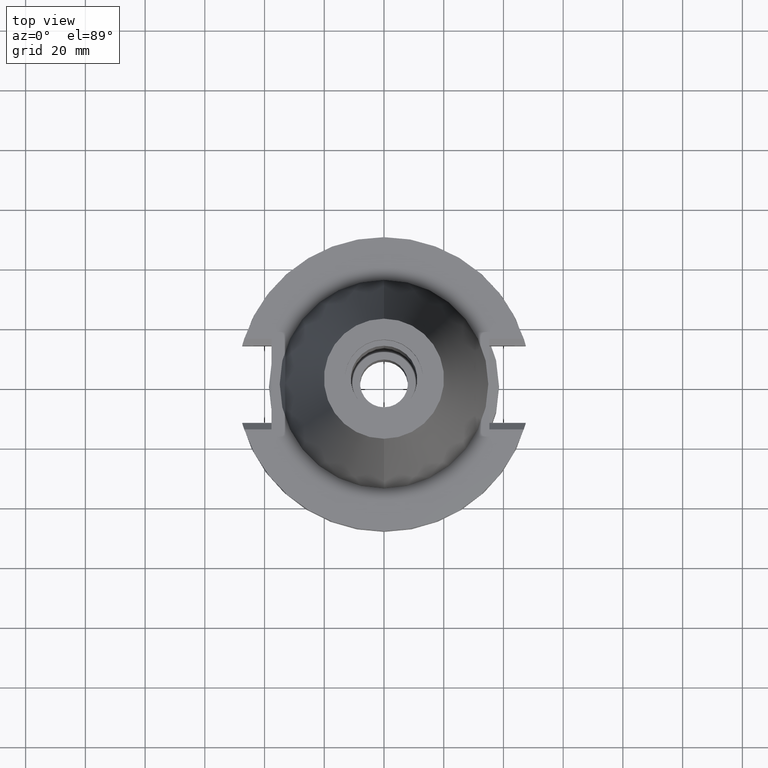
[diagram: clean part render]
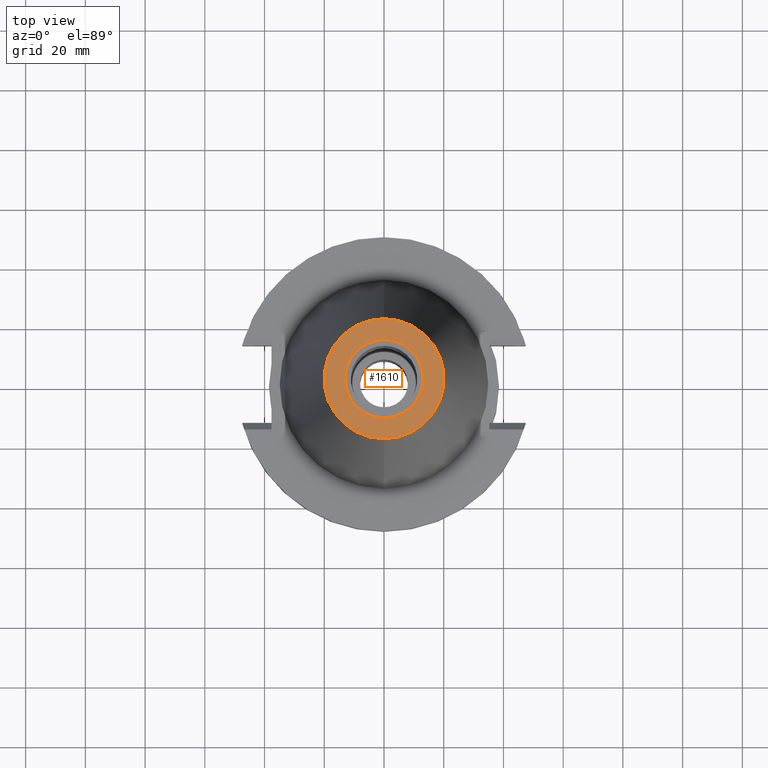
[diagram: same view with one face highlighted and labeled with its STEP entity id]
A machine part, top view. The second image highlights one B-rep face of the part: STEP entity #1610.
In plain terms, the highlighted planar face has unit normal (0, 0, 1).
Its self-contained STEP definition (entity closure, byte-faithful):
#17=CARTESIAN_POINT('',(0.E0,0.E0,1.016E2));
#18=DIRECTION('',(0.E0,0.E0,-1.E0));
#19=DIRECTION('',(0.E0,-1.E0,0.E0));
#20=AXIS2_PLACEMENT_3D('',#17,#18,#19);
#26=CARTESIAN_POINT('',(0.E0,0.E0,1.016E2));
#27=DIRECTION('',(0.E0,0.E0,-1.E0));
#28=DIRECTION('',(0.E0,1.E0,0.E0));
#29=AXIS2_PLACEMENT_3D('',#26,#27,#28);
#34=CARTESIAN_POINT('',(0.E0,0.E0,1.016E2));
#35=DIRECTION('',(0.E0,0.E0,1.E0));
#36=DIRECTION('',(0.E0,-1.E0,0.E0));
#37=AXIS2_PLACEMENT_3D('',#34,#35,#36);
#42=CARTESIAN_POINT('',(0.E0,0.E0,1.016E2));
#43=DIRECTION('',(0.E0,0.E0,1.E0));
#44=DIRECTION('',(0.E0,1.E0,0.E0));
#45=AXIS2_PLACEMENT_3D('',#42,#43,#44);
#1364=CARTESIAN_POINT('',(0.E0,-2.010832422388E1,1.016E2));
#1365=CARTESIAN_POINT('',(0.E0,2.010832422388E1,1.016E2));
#1366=VERTEX_POINT('',#1364);
#1367=VERTEX_POINT('',#1365);
#1368=CARTESIAN_POINT('',(0.E0,-1.3115E1,1.016E2));
#1369=CARTESIAN_POINT('',(0.E0,1.3115E1,1.016E2));
#1370=VERTEX_POINT('',#1368);
#1371=VERTEX_POINT('',#1369);
#1593=CARTESIAN_POINT('',(0.E0,0.E0,1.016E2));
#1594=DIRECTION('',(0.E0,0.E0,1.E0));
#1595=DIRECTION('',(0.E0,1.E0,0.E0));
#1596=AXIS2_PLACEMENT_3D('',#1593,#1594,#1595);
#1597=PLANE('',#1596);
#1599=ORIENTED_EDGE('',*,*,#1598,.T.);
#1601=ORIENTED_EDGE('',*,*,#1600,.T.);
#1602=EDGE_LOOP('',(#1599,#1601));
#1603=FACE_OUTER_BOUND('',#1602,.F.);
#1605=ORIENTED_EDGE('',*,*,#1604,.T.);
#1607=ORIENTED_EDGE('',*,*,#1606,.T.);
#1608=EDGE_LOOP('',(#1605,#1607));
#1609=FACE_BOUND('',#1608,.F.);
#21=CIRCLE('',#20,2.010832422388E1);
#30=CIRCLE('',#29,2.010832422388E1);
#38=CIRCLE('',#37,1.3115E1);
#46=CIRCLE('',#45,1.3115E1);
#1598=EDGE_CURVE('',#1366,#1367,#21,.T.);
#1600=EDGE_CURVE('',#1367,#1366,#30,.T.);
#1604=EDGE_CURVE('',#1370,#1371,#38,.T.);
#1606=EDGE_CURVE('',#1371,#1370,#46,.T.);
#1610=ADVANCED_FACE('',(#1603,#1609),#1597,.T.);